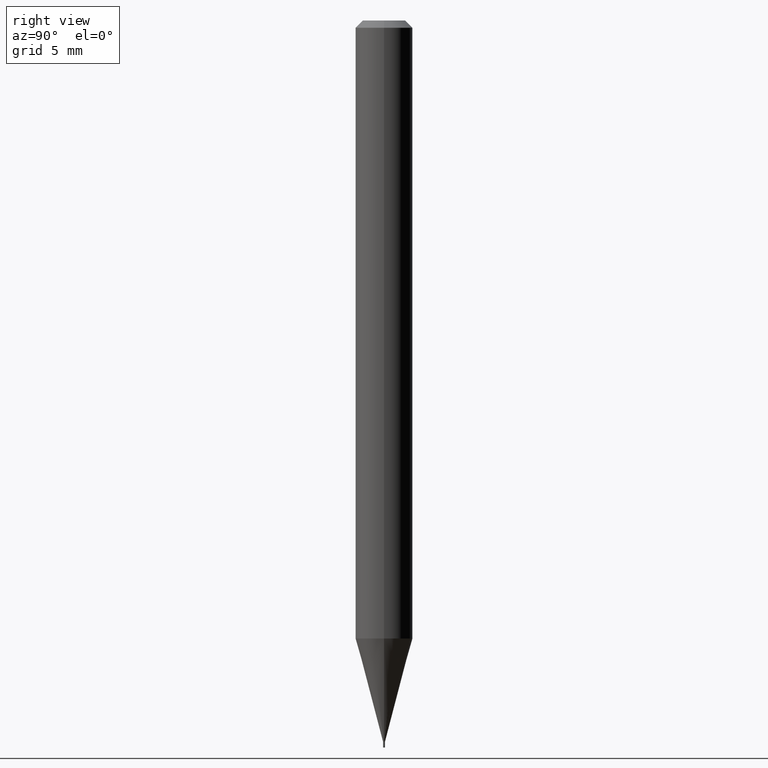
[diagram: clean part render]
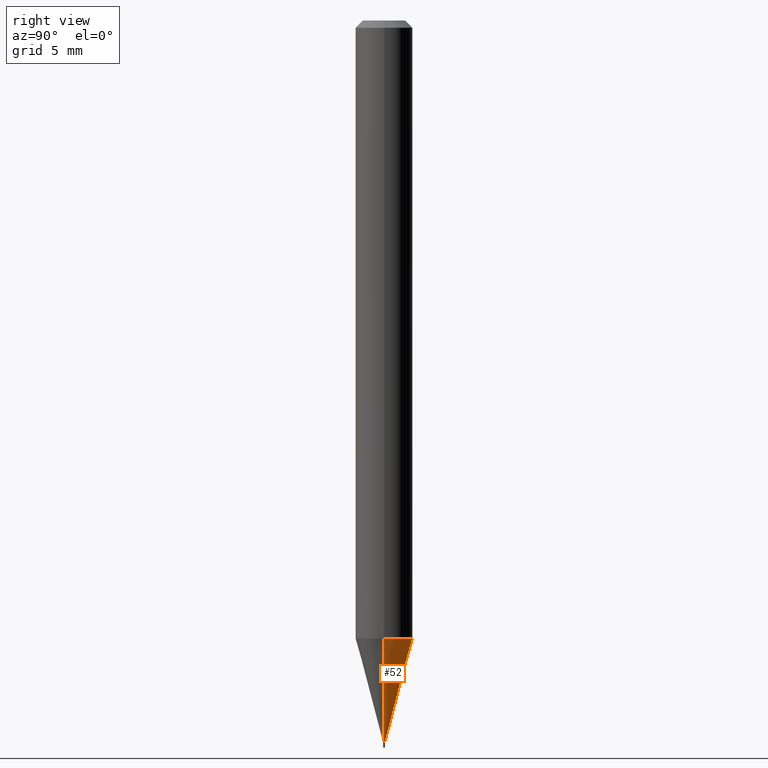
[diagram: same view with one face highlighted and labeled with its STEP entity id]
A machine part, right view. The second image highlights one B-rep face of the part: STEP entity #52.
In plain terms, the highlighted conical surface has half-angle 15 deg.
Its self-contained STEP definition (entity closure, byte-faithful):
#25 = VERTEX_POINT ( 'NONE', #73 ) ;
#34 = DIRECTION ( 'NONE',  ( 0.2588190451025214611, 1.565188264969621573E-15, 0.9659258262890682012 ) ) ;
#46 = CARTESIAN_POINT ( 'NONE',  ( -0.05904999999999999138, -4.032412016661256673E-15, -1.275099898887817274 ) ) ;
#52 = ADVANCED_FACE ( 'NONE', ( #460 ), #410, .T. ) ;
#73 = CARTESIAN_POINT ( 'NONE',  ( 0.05904999999999999138, -4.864331448244970298E-15, -1.275099898887817274 ) ) ;
#105 = EDGE_CURVE ( 'NONE', #203, #25, #346, .T. ) ;
#124 = AXIS2_PLACEMENT_3D ( 'NONE', #143, #426, #459 ) ;
#128 = ORIENTED_EDGE ( 'NONE', *, *, #268, .T. ) ;
#133 = ORIENTED_EDGE ( 'NONE', *, *, #105, .F. ) ;
#143 = CARTESIAN_POINT ( 'NONE',  ( 3.639346677364720273E-29, -5.196022528466369115E-15, -1.488199999999999967 ) ) ;
#151 = AXIS2_PLACEMENT_3D ( 'NONE', #249, #387, #315 ) ;
#157 = CARTESIAN_POINT ( 'NONE',  ( -0.001949999999999910139, -5.182166945119047109E-15, -1.488199999999999967 ) ) ;
#158 = CIRCLE ( 'NONE', #248, 0.05904999999999999832 ) ;
#159 = DIRECTION ( 'NONE',  ( 1.000000000000000000, -6.982962677686273021E-15, 0.000000000000000000 ) ) ;
#171 = CIRCLE ( 'NONE', #124, 0.001949999999999910139 ) ;
#203 = VERTEX_POINT ( 'NONE', #276 ) ;
#206 = VECTOR ( 'NONE', #34, 39.37007874015747433 ) ;
#224 = VERTEX_POINT ( 'NONE', #464 ) ;
#248 = AXIS2_PLACEMENT_3D ( 'NONE', #258, #400, #159 ) ;
#249 = CARTESIAN_POINT ( 'NONE',  ( 3.639346677364720273E-29, -5.196022528466369115E-15, -1.488199999999999967 ) ) ;
#258 = CARTESIAN_POINT ( 'NONE',  ( 3.118217027499978944E-29, -4.451987502127596166E-15, -1.275099898887817274 ) ) ;
#268 = EDGE_CURVE ( 'NONE', #203, #224, #171, .T. ) ;
#276 = CARTESIAN_POINT ( 'NONE',  ( 0.001949999999999910139, -5.209639305687856843E-15, -1.488199999999999967 ) ) ;
#315 = DIRECTION ( 'NONE',  ( 1.000000000000000000, -6.982962677686480492E-15, 0.000000000000000000 ) ) ;
#316 = VECTOR ( 'NONE', #438, 39.37007874015747433 ) ;
#333 = EDGE_LOOP ( 'NONE', ( #128, #456, #375, #133 ) ) ;
#346 = LINE ( 'NONE', #463, #206 ) ;
#375 = ORIENTED_EDGE ( 'NONE', *, *, #466, .F. ) ;
#387 = DIRECTION ( 'NONE',  ( -2.445468806185136597E-29, 3.491481338843145583E-15, 1.000000000000000000 ) ) ;
#400 = DIRECTION ( 'NONE',  ( -2.445468806185136597E-29, 3.491481338843145583E-15, 1.000000000000000000 ) ) ;
#410 = CONICAL_SURFACE ( 'NONE', #151, 0.001949999999999910139, 0.2617993877991501295 ) ;
#411 = EDGE_CURVE ( 'NONE', #224, #454, #430, .T. ) ;
#426 = DIRECTION ( 'NONE',  ( -2.445468806185136597E-29, 3.491481338843145583E-15, 1.000000000000000000 ) ) ;
#430 = LINE ( 'NONE', #157, #316 ) ;
#438 = DIRECTION ( 'NONE',  ( -0.2588190451025214611, 5.211531920934551042E-15, 0.9659258262890682012 ) ) ;
#454 = VERTEX_POINT ( 'NONE', #46 ) ;
#456 = ORIENTED_EDGE ( 'NONE', *, *, #411, .T. ) ;
#459 = DIRECTION ( 'NONE',  ( 1.000000000000000000, -6.982962677686480492E-15, 0.000000000000000000 ) ) ;
#460 = FACE_OUTER_BOUND ( 'NONE', #333, .T. ) ;
#463 = CARTESIAN_POINT ( 'NONE',  ( 0.001949999999999910139, -5.209639305687856843E-15, -1.488199999999999967 ) ) ;
#464 = CARTESIAN_POINT ( 'NONE',  ( -0.001949999999999910139, -4.607289480890151497E-15, -1.488199999999999967 ) ) ;
#466 = EDGE_CURVE ( 'NONE', #25, #454, #158, .T. ) ;